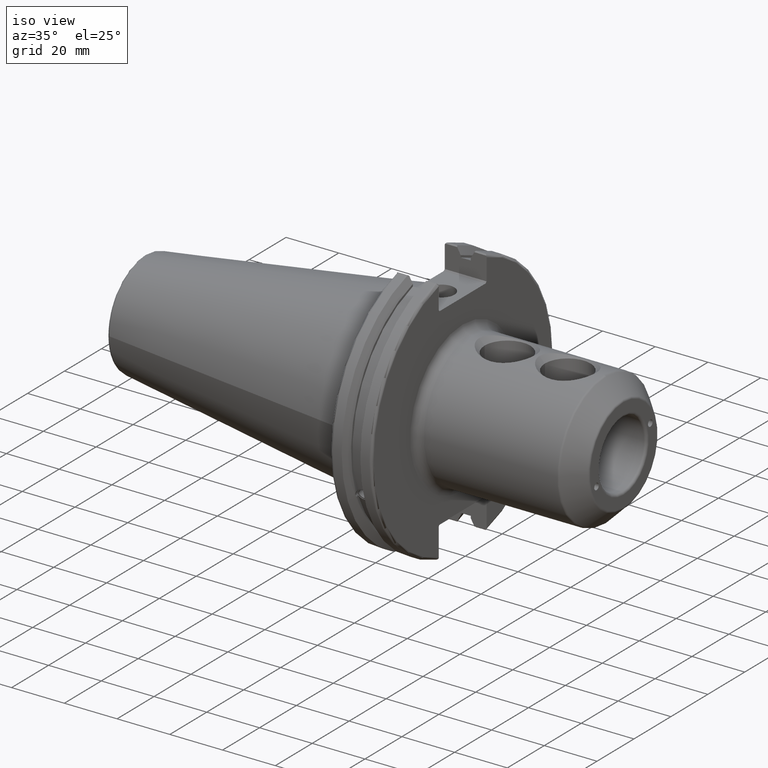
[diagram: clean part render]
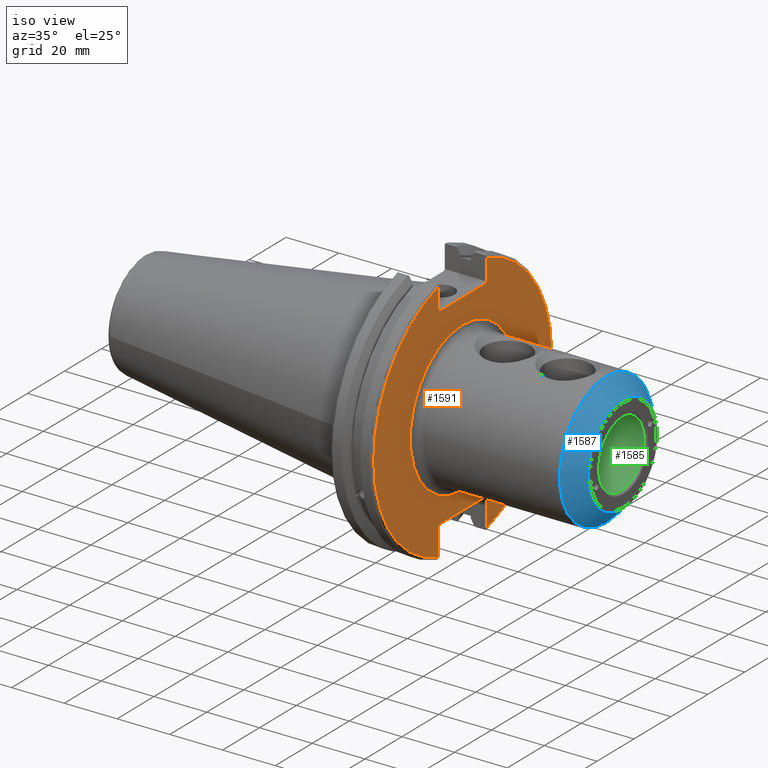
[diagram: same view with three faces highlighted in distinct colors, each labeled with its STEP entity id]
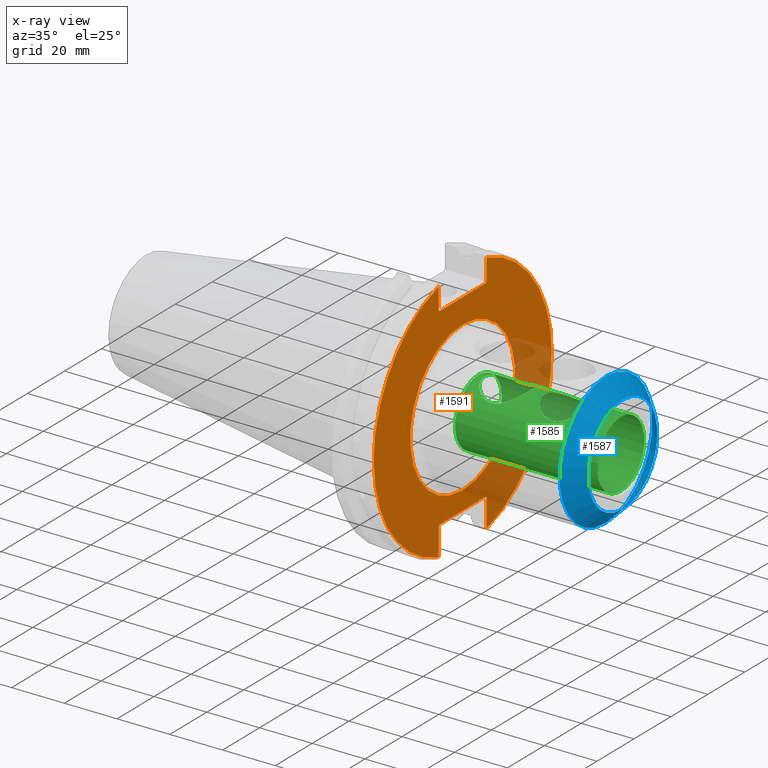
[diagram: x-ray of the same camera — body ghosted, the three highlighted faces saturated]
A machine part, iso view with three faces highlighted in distinct colors.
The next image is the same camera in x-ray (body ghosted, the three faces saturated) — at least one of them is partly hidden behind the body in this view.
Their STEP definitions:

[orange] entity #1591 — the highlighted planar face has unit normal (1, 0, 0).
#63=FACE_BOUND('',#318,.T.);
#87=PLANE('',#1728);
#143=CIRCLE('',#1727,28.4);
#144=CIRCLE('',#1729,48.2125);
#145=CIRCLE('',#1730,48.2125);
#217=FACE_OUTER_BOUND('',#317,.T.);
#317=EDGE_LOOP('',(#1144,#1145,#1146,#1147,#1148,#1149,#1150,#1151,#1152,
#1153,#1154,#1155));
#318=EDGE_LOOP('',(#1156));
#472=LINE('',#2625,#566);
#473=LINE('',#2627,#567);
#474=LINE('',#2629,#568);
#475=LINE('',#2631,#569);
#476=LINE('',#2633,#570);
#477=LINE('',#2637,#571);
#478=LINE('',#2639,#572);
#479=LINE('',#2641,#573);
#480=LINE('',#2643,#574);
#481=LINE('',#2644,#575);
#566=VECTOR('',#1955,10.);
#567=VECTOR('',#1956,10.);
#568=VECTOR('',#1957,10.);
#569=VECTOR('',#1958,10.);
#570=VECTOR('',#1959,10.);
#571=VECTOR('',#1962,10.);
#572=VECTOR('',#1963,10.);
#573=VECTOR('',#1964,10.);
#574=VECTOR('',#1965,10.);
#575=VECTOR('',#1966,10.);
#685=VERTEX_POINT('',#2617);
#686=VERTEX_POINT('',#2621);
#687=VERTEX_POINT('',#2622);
#688=VERTEX_POINT('',#2624);
#689=VERTEX_POINT('',#2626);
#690=VERTEX_POINT('',#2628);
#691=VERTEX_POINT('',#2630);
#692=VERTEX_POINT('',#2632);
#693=VERTEX_POINT('',#2634);
#694=VERTEX_POINT('',#2636);
#695=VERTEX_POINT('',#2638);
#696=VERTEX_POINT('',#2640);
#697=VERTEX_POINT('',#2642);
#863=EDGE_CURVE('',#685,#685,#143,.T.);
#864=EDGE_CURVE('',#686,#687,#144,.T.);
#865=EDGE_CURVE('',#686,#688,#472,.T.);
#866=EDGE_CURVE('',#689,#688,#473,.T.);
#867=EDGE_CURVE('',#689,#690,#474,.T.);
#868=EDGE_CURVE('',#691,#690,#475,.T.);
#869=EDGE_CURVE('',#691,#692,#476,.T.);
#870=EDGE_CURVE('',#693,#692,#145,.T.);
#871=EDGE_CURVE('',#693,#694,#477,.T.);
#872=EDGE_CURVE('',#695,#694,#478,.T.);
#873=EDGE_CURVE('',#695,#696,#479,.T.);
#874=EDGE_CURVE('',#697,#696,#480,.T.);
#875=EDGE_CURVE('',#697,#687,#481,.T.);
#1144=ORIENTED_EDGE('',*,*,#864,.F.);
#1145=ORIENTED_EDGE('',*,*,#865,.T.);
#1146=ORIENTED_EDGE('',*,*,#866,.F.);
#1147=ORIENTED_EDGE('',*,*,#867,.T.);
#1148=ORIENTED_EDGE('',*,*,#868,.F.);
#1149=ORIENTED_EDGE('',*,*,#869,.T.);
#1150=ORIENTED_EDGE('',*,*,#870,.F.);
#1151=ORIENTED_EDGE('',*,*,#871,.T.);
#1152=ORIENTED_EDGE('',*,*,#872,.F.);
#1153=ORIENTED_EDGE('',*,*,#873,.T.);
#1154=ORIENTED_EDGE('',*,*,#874,.F.);
#1155=ORIENTED_EDGE('',*,*,#875,.T.);
#1156=ORIENTED_EDGE('',*,*,#863,.F.);
#1591=ADVANCED_FACE('',(#217,#63),#87,.T.);
#1727=AXIS2_PLACEMENT_3D('',#2619,#1949,#1950);
#1728=AXIS2_PLACEMENT_3D('',#2620,#1951,#1952);
#1729=AXIS2_PLACEMENT_3D('',#2623,#1953,#1954);
#1730=AXIS2_PLACEMENT_3D('',#2635,#1960,#1961);
#1949=DIRECTION('center_axis',(1.,0.,0.));
#1950=DIRECTION('ref_axis',(0.,1.22464679914735E-16,-1.));
#1951=DIRECTION('center_axis',(1.,0.,0.));
#1952=DIRECTION('ref_axis',(0.,0.,-1.));
#1953=DIRECTION('center_axis',(-1.,0.,0.));
#1954=DIRECTION('ref_axis',(0.,1.,-6.12323399573677E-17));
#1955=DIRECTION('',(0.,0.,-1.));
#1956=DIRECTION('',(0.,0.707106781186549,0.707106781186546));
#1957=DIRECTION('',(0.,-1.,0.));
#1958=DIRECTION('',(0.,0.707106781186549,-0.707106781186546));
#1959=DIRECTION('',(0.,0.,1.));
#1960=DIRECTION('center_axis',(-1.,0.,0.));
#1961=DIRECTION('ref_axis',(0.,-1.,1.60812264967664E-16));
#1962=DIRECTION('',(0.,0.,1.));
#1963=DIRECTION('',(0.,-0.707106781186549,-0.707106781186546));
#1964=DIRECTION('',(0.,1.,0.));
#1965=DIRECTION('',(0.,-0.707106781186549,0.707106781186546));
#1966=DIRECTION('',(0.,0.,-1.));
#2617=CARTESIAN_POINT('',(19.05,-3.47799690957848E-15,-28.4));
#2619=CARTESIAN_POINT('Origin',(19.05,0.,0.));
#2620=CARTESIAN_POINT('Origin',(19.05,0.,0.));
#2621=CARTESIAN_POINT('',(19.05,12.95,46.4407434937254));
#2622=CARTESIAN_POINT('',(19.05,12.95,-46.4407434937254));
#2623=CARTESIAN_POINT('Origin',(19.05,0.,0.));
#2624=CARTESIAN_POINT('',(19.05,12.95,38.219));
#2625=CARTESIAN_POINT('',(19.05,12.95,18.8595));
#2626=CARTESIAN_POINT('',(19.05,12.45,37.719));
#2627=CARTESIAN_POINT('',(19.05,0.0327499999999836,25.30175));
#2628=CARTESIAN_POINT('',(19.05,-12.45,37.719));
#2629=CARTESIAN_POINT('',(19.05,0.,37.719));
#2630=CARTESIAN_POINT('',(19.05,-12.95,38.219));
#2631=CARTESIAN_POINT('',(19.05,-0.0327499999999817,25.30175));
#2632=CARTESIAN_POINT('',(19.05,-12.95,46.4407434937254));
#2633=CARTESIAN_POINT('',(19.05,-12.95,18.8595));
#2634=CARTESIAN_POINT('',(19.05,-12.95,-46.4407434937254));
#2635=CARTESIAN_POINT('Origin',(19.05,0.,0.));
#2636=CARTESIAN_POINT('',(19.05,-12.95,-35.806));
#2637=CARTESIAN_POINT('',(19.05,-12.95,-17.653));
#2638=CARTESIAN_POINT('',(19.05,-12.45,-35.306));
#2639=CARTESIAN_POINT('',(19.05,-0.635999999999989,-23.492));
#2640=CARTESIAN_POINT('',(19.05,12.45,-35.306));
#2641=CARTESIAN_POINT('',(19.05,-3.33066907387547E-15,-35.306));
#2642=CARTESIAN_POINT('',(19.05,12.95,-35.806));
#2643=CARTESIAN_POINT('',(19.05,0.635999999999982,-23.492));
#2644=CARTESIAN_POINT('',(19.05,12.95,-17.653));

[blue] entity #1587 — the highlighted conical surface has half-angle 45 deg.
#43=CONICAL_SURFACE('',#1716,21.95,0.785398163397449);
#134=CIRCLE('',#1714,18.7928932188135);
#135=CIRCLE('',#1715,18.7928932188135);
#136=CIRCLE('',#1717,25.1071067811865);
#137=CIRCLE('',#1718,25.1071067811865);
#213=FACE_OUTER_BOUND('',#311,.T.);
#311=EDGE_LOOP('',(#1119,#1120,#1121,#1122,#1123,#1124));
#470=LINE('',#2602,#564);
#564=VECTOR('',#1927,21.95);
#678=VERTEX_POINT('',#2595);
#679=VERTEX_POINT('',#2597);
#680=VERTEX_POINT('',#2601);
#681=VERTEX_POINT('',#2603);
#852=EDGE_CURVE('',#678,#679,#134,.T.);
#853=EDGE_CURVE('',#679,#678,#135,.T.);
#854=EDGE_CURVE('',#679,#680,#470,.T.);
#855=EDGE_CURVE('',#681,#680,#136,.T.);
#856=EDGE_CURVE('',#680,#681,#137,.T.);
#1119=ORIENTED_EDGE('',*,*,#852,.F.);
#1120=ORIENTED_EDGE('',*,*,#853,.F.);
#1121=ORIENTED_EDGE('',*,*,#854,.T.);
#1122=ORIENTED_EDGE('',*,*,#855,.F.);
#1123=ORIENTED_EDGE('',*,*,#856,.F.);
#1124=ORIENTED_EDGE('',*,*,#854,.F.);
#1587=ADVANCED_FACE('',(#213),#43,.T.);
#1714=AXIS2_PLACEMENT_3D('',#2598,#1921,#1922);
#1715=AXIS2_PLACEMENT_3D('',#2599,#1923,#1924);
#1716=AXIS2_PLACEMENT_3D('',#2600,#1925,#1926);
#1717=AXIS2_PLACEMENT_3D('',#2604,#1928,#1929);
#1718=AXIS2_PLACEMENT_3D('',#2605,#1930,#1931);
#1921=DIRECTION('center_axis',(1.,0.,0.));
#1922=DIRECTION('ref_axis',(0.,6.12323399573677E-17,-1.));
#1923=DIRECTION('center_axis',(1.,0.,0.));
#1924=DIRECTION('ref_axis',(0.,6.12323399573677E-17,-1.));
#1925=DIRECTION('center_axis',(-1.,0.,0.));
#1926=DIRECTION('ref_axis',(0.,0.,1.));
#1927=DIRECTION('',(-0.707106781186547,8.65956056235494E-17,-0.707106781186548));
#1928=DIRECTION('center_axis',(-1.,0.,0.));
#1929=DIRECTION('ref_axis',(0.,6.12323399573677E-17,-1.));
#1930=DIRECTION('center_axis',(-1.,0.,0.));
#1931=DIRECTION('ref_axis',(0.,6.12323399573677E-17,-1.));
#2595=CARTESIAN_POINT('',(79.7071067811866,-2.30146565271379E-15,18.7928932188135));
#2597=CARTESIAN_POINT('',(79.7071067811866,2.30146565271379E-15,-18.7928932188135));
#2598=CARTESIAN_POINT('Origin',(79.7071067811866,1.15073282635689E-15,0.));
#2599=CARTESIAN_POINT('Origin',(79.7071067811866,1.15073282635689E-15,0.));
#2600=CARTESIAN_POINT('Origin',(76.55,0.,0.));
#2601=CARTESIAN_POINT('',(73.3928932188135,3.07473379554309E-15,-25.1071067811866));
#2602=CARTESIAN_POINT('',(76.55,2.68809972412844E-15,-21.95));
#2603=CARTESIAN_POINT('',(73.3928932188135,3.07473379554309E-15,25.1071067811865));
#2604=CARTESIAN_POINT('Origin',(73.3928932188135,1.53736689777155E-15,0.));
#2605=CARTESIAN_POINT('Origin',(73.3928932188135,1.53736689777155E-15,0.));

[green] entity #1585 — the highlighted cylindrical surface (bore or boss wall) has radius 12.7 mm, axis along (1, 0, 0).
#59=FACE_BOUND('',#308,.T.);
#60=FACE_BOUND('',#309,.T.);
#127=CIRCLE('',#1704,12.7);
#128=CIRCLE('',#1705,12.7);
#132=CIRCLE('',#1711,12.7);
#211=FACE_OUTER_BOUND('',#307,.T.);
#307=EDGE_LOOP('',(#1105,#1106,#1107,#1108,#1109));
#308=EDGE_LOOP('',(#1110,#1111));
#309=EDGE_LOOP('',(#1112,#1113));
#417=B_SPLINE_CURVE_WITH_KNOTS('',3,(#2415,#2416,#2417,#2418,#2419,#2420,
#2421,#2422,#2423,#2424,#2425,#2426,#2427,#2428,#2429,#2430,#2431,#2432,
#2433,#2434,#2435,#2436,#2437,#2438,#2439,#2440),.UNSPECIFIED.,.F.,.F.,
(4,2,2,2,2,2,2,2,2,2,2,2,4),(0.,0.342831187342052,0.685662374684104,1.02424067190905,
1.36281896913399,1.70139726635893,2.03997556358388,2.38280675092593,2.72563793826798,
3.06846912561003,3.41130031295208,3.74987861017703,4.08845690740197),
 .UNSPECIFIED.);
#418=B_SPLINE_CURVE_WITH_KNOTS('',3,(#2441,#2442,#2443,#2444,#2445,#2446,
#2447,#2448,#2449,#2450),.UNSPECIFIED.,.F.,.F.,(4,2,2,2,4),(4.08845690740197,
4.42703520462691,4.76561350185186,5.10844468919391,5.45127587653596),
 .UNSPECIFIED.);
#421=B_SPLINE_CURVE_WITH_KNOTS('',3,(#2500,#2501,#2502,#2503,#2504,#2505,
#2506,#2507,#2508,#2509,#2510,#2511,#2512,#2513,#2514,#2515,#2516,#2517,
#2518,#2519,#2520,#2521,#2522,#2523,#2524,#2525),.UNSPECIFIED.,.F.,.F.,
(4,2,2,2,2,2,2,2,2,2,2,2,4),(0.,0.342831187342052,0.685662374684105,1.02424067190905,
1.36281896913399,1.70139726635893,2.03997556358388,2.38280675092593,2.72563793826798,
3.06846912561003,3.41130031295208,3.74987861017703,4.08845690740197),
 .UNSPECIFIED.);
#422=B_SPLINE_CURVE_WITH_KNOTS('',3,(#2526,#2527,#2528,#2529,#2530,#2531,
#2532,#2533,#2534,#2535),.UNSPECIFIED.,.F.,.F.,(4,2,2,2,4),(4.08845690740197,
4.42703520462691,4.76561350185186,5.10844468919391,5.45127587653596),
 .UNSPECIFIED.);
#469=LINE('',#2592,#563);
#563=VECTOR('',#1914,12.7);
#662=VERTEX_POINT('',#2412);
#663=VERTEX_POINT('',#2414);
#668=VERTEX_POINT('',#2497);
#669=VERTEX_POINT('',#2499);
#673=VERTEX_POINT('',#2580);
#674=VERTEX_POINT('',#2581);
#677=VERTEX_POINT('',#2591);
#830=EDGE_CURVE('',#663,#662,#417,.T.);
#831=EDGE_CURVE('',#662,#663,#418,.T.);
#838=EDGE_CURVE('',#669,#668,#421,.T.);
#839=EDGE_CURVE('',#668,#669,#422,.T.);
#844=EDGE_CURVE('',#673,#674,#127,.T.);
#845=EDGE_CURVE('',#674,#673,#128,.T.);
#849=EDGE_CURVE('',#674,#677,#469,.T.);
#850=EDGE_CURVE('',#677,#677,#132,.T.);
#1105=ORIENTED_EDGE('',*,*,#844,.F.);
#1106=ORIENTED_EDGE('',*,*,#845,.F.);
#1107=ORIENTED_EDGE('',*,*,#849,.T.);
#1108=ORIENTED_EDGE('',*,*,#850,.F.);
#1109=ORIENTED_EDGE('',*,*,#849,.F.);
#1110=ORIENTED_EDGE('',*,*,#830,.T.);
#1111=ORIENTED_EDGE('',*,*,#831,.T.);
#1112=ORIENTED_EDGE('',*,*,#838,.T.);
#1113=ORIENTED_EDGE('',*,*,#839,.T.);
#1550=CYLINDRICAL_SURFACE('',#1710,12.7);
#1585=ADVANCED_FACE('',(#211,#59,#60),#1550,.F.);
#1704=AXIS2_PLACEMENT_3D('',#2582,#1900,#1901);
#1705=AXIS2_PLACEMENT_3D('',#2583,#1902,#1903);
#1710=AXIS2_PLACEMENT_3D('',#2590,#1912,#1913);
#1711=AXIS2_PLACEMENT_3D('',#2593,#1915,#1916);
#1900=DIRECTION('center_axis',(-1.,0.,0.));
#1901=DIRECTION('ref_axis',(0.,0.,-1.));
#1902=DIRECTION('center_axis',(-1.,0.,0.));
#1903=DIRECTION('ref_axis',(0.,0.,-1.));
#1912=DIRECTION('center_axis',(1.,0.,0.));
#1913=DIRECTION('ref_axis',(0.,0.,1.));
#1914=DIRECTION('',(-1.,0.,0.));
#1915=DIRECTION('center_axis',(1.,0.,0.));
#1916=DIRECTION('ref_axis',(0.,0.,-1.));
#2412=CARTESIAN_POINT('',(27.3386,-1.08546930161932E-15,12.7));
#2414=CARTESIAN_POINT('',(36.,-8.6614,9.28817258883577));
#2415=CARTESIAN_POINT('Ctrl Pts',(36.,-8.6614,9.28817258883577));
#2416=CARTESIAN_POINT('Ctrl Pts',(37.1427706244735,-8.6614,9.28817258883577));
#2417=CARTESIAN_POINT('Ctrl Pts',(38.3131925798569,-8.42510703939285,9.52028980979605));
#2418=CARTESIAN_POINT('Ctrl Pts',(40.4248186480471,-7.53354592798,10.2403122930747));
#2419=CARTESIAN_POINT('Ctrl Pts',(41.3715110112521,-6.87755833788624,10.7111190531903));
#2420=CARTESIAN_POINT('Ctrl Pts',(42.8682169272622,-5.38085242187607,11.5350374541816));
#2421=CARTESIAN_POINT('Ctrl Pts',(43.5302869359934,-4.43227008771076,11.9523850753063));
#2422=CARTESIAN_POINT('Ctrl Pts',(44.4277674149023,-2.30715875855382,12.5372065673924));
#2423=CARTESIAN_POINT('Ctrl Pts',(44.6614,-1.12859432408314,12.7));
#2424=CARTESIAN_POINT('Ctrl Pts',(44.6614,1.12859432408315,12.7));
#2425=CARTESIAN_POINT('Ctrl Pts',(44.4277674149023,2.30715875855383,12.5372065673924));
#2426=CARTESIAN_POINT('Ctrl Pts',(43.5302869359934,4.43227008771077,11.9523850753063));
#2427=CARTESIAN_POINT('Ctrl Pts',(42.8682169272622,5.38085242187608,11.5350374541816));
#2428=CARTESIAN_POINT('Ctrl Pts',(41.3715110112521,6.87755833788624,10.7111190531903));
#2429=CARTESIAN_POINT('Ctrl Pts',(40.4248186480471,7.53354592798,10.2403122930747));
#2430=CARTESIAN_POINT('Ctrl Pts',(38.3131925798569,8.42510703939285,9.52028980979605));
#2431=CARTESIAN_POINT('Ctrl Pts',(37.1427706244735,8.6614,9.28817258883577));
#2432=CARTESIAN_POINT('Ctrl Pts',(34.8572293755265,8.6614,9.28817258883577));
#2433=CARTESIAN_POINT('Ctrl Pts',(33.6868074201431,8.42510703939285,9.52028980979605));
#2434=CARTESIAN_POINT('Ctrl Pts',(31.5751813519529,7.53354592798,10.2403122930747));
#2435=CARTESIAN_POINT('Ctrl Pts',(30.6284889887479,6.87755833788624,10.7111190531903));
#2436=CARTESIAN_POINT('Ctrl Pts',(29.1317830727377,5.38085242187607,11.5350374541816));
#2437=CARTESIAN_POINT('Ctrl Pts',(28.4697130640066,4.43227008771077,11.9523850753063));
#2438=CARTESIAN_POINT('Ctrl Pts',(27.5722325850977,2.30715875855382,12.5372065673924));
#2439=CARTESIAN_POINT('Ctrl Pts',(27.3386,1.12859432408314,12.7));
#2440=CARTESIAN_POINT('Ctrl Pts',(27.3386,-5.55111512312578E-16,12.7));
#2441=CARTESIAN_POINT('Ctrl Pts',(27.3386,-1.38777878078145E-15,12.7));
#2442=CARTESIAN_POINT('Ctrl Pts',(27.3386,-1.12859432408315,12.7));
#2443=CARTESIAN_POINT('Ctrl Pts',(27.5722325850977,-2.30715875855383,12.5372065673924));
#2444=CARTESIAN_POINT('Ctrl Pts',(28.4697130640066,-4.43227008771077,11.9523850753063));
#2445=CARTESIAN_POINT('Ctrl Pts',(29.1317830727377,-5.38085242187607,11.5350374541816));
#2446=CARTESIAN_POINT('Ctrl Pts',(30.6284889887479,-6.87755833788624,10.7111190531903));
#2447=CARTESIAN_POINT('Ctrl Pts',(31.5751813519529,-7.53354592798,10.2403122930747));
#2448=CARTESIAN_POINT('Ctrl Pts',(33.6868074201431,-8.42510703939285,9.52028980979605));
#2449=CARTESIAN_POINT('Ctrl Pts',(34.8572293755265,-8.6614,9.28817258883577));
#2450=CARTESIAN_POINT('Ctrl Pts',(36.,-8.6614,9.28817258883577));
#2497=CARTESIAN_POINT('',(50.2386,-1.50180293585376E-15,12.7));
#2499=CARTESIAN_POINT('',(58.9,-8.6614,9.28817258883577));
#2500=CARTESIAN_POINT('Ctrl Pts',(58.9,-8.6614,9.28817258883577));
#2501=CARTESIAN_POINT('Ctrl Pts',(60.0427706244735,-8.6614,9.28817258883577));
#2502=CARTESIAN_POINT('Ctrl Pts',(61.2131925798569,-8.42510703939285,9.52028980979605));
#2503=CARTESIAN_POINT('Ctrl Pts',(63.3248186480471,-7.53354592798,10.2403122930747));
#2504=CARTESIAN_POINT('Ctrl Pts',(64.2715110112521,-6.87755833788623,10.7111190531903));
#2505=CARTESIAN_POINT('Ctrl Pts',(65.7682169272623,-5.38085242187607,11.5350374541816));
#2506=CARTESIAN_POINT('Ctrl Pts',(66.4302869359934,-4.43227008771076,11.9523850753063));
#2507=CARTESIAN_POINT('Ctrl Pts',(67.3277674149023,-2.30715875855382,12.5372065673924));
#2508=CARTESIAN_POINT('Ctrl Pts',(67.5614,-1.12859432408314,12.7));
#2509=CARTESIAN_POINT('Ctrl Pts',(67.5614,1.12859432408315,12.7));
#2510=CARTESIAN_POINT('Ctrl Pts',(67.3277674149023,2.30715875855382,12.5372065673924));
#2511=CARTESIAN_POINT('Ctrl Pts',(66.4302869359934,4.43227008771077,11.9523850753063));
#2512=CARTESIAN_POINT('Ctrl Pts',(65.7682169272623,5.38085242187607,11.5350374541816));
#2513=CARTESIAN_POINT('Ctrl Pts',(64.2715110112521,6.87755833788623,10.7111190531903));
#2514=CARTESIAN_POINT('Ctrl Pts',(63.3248186480471,7.53354592798,10.2403122930747));
#2515=CARTESIAN_POINT('Ctrl Pts',(61.2131925798569,8.42510703939285,9.52028980979605));
#2516=CARTESIAN_POINT('Ctrl Pts',(60.0427706244735,8.6614,9.28817258883577));
#2517=CARTESIAN_POINT('Ctrl Pts',(57.7572293755265,8.6614,9.28817258883577));
#2518=CARTESIAN_POINT('Ctrl Pts',(56.5868074201431,8.42510703939285,9.52028980979605));
#2519=CARTESIAN_POINT('Ctrl Pts',(54.4751813519529,7.53354592798,10.2403122930747));
#2520=CARTESIAN_POINT('Ctrl Pts',(53.5284889887479,6.87755833788623,10.7111190531903));
#2521=CARTESIAN_POINT('Ctrl Pts',(52.0317830727377,5.38085242187607,11.5350374541816));
#2522=CARTESIAN_POINT('Ctrl Pts',(51.3697130640066,4.43227008771076,11.9523850753063));
#2523=CARTESIAN_POINT('Ctrl Pts',(50.4722325850977,2.30715875855382,12.5372065673924));
#2524=CARTESIAN_POINT('Ctrl Pts',(50.2386,1.12859432408314,12.7));
#2525=CARTESIAN_POINT('Ctrl Pts',(50.2386,-2.77555756156289E-16,12.7));
#2526=CARTESIAN_POINT('Ctrl Pts',(50.2386,-1.94289029309402E-15,12.7));
#2527=CARTESIAN_POINT('Ctrl Pts',(50.2386,-1.12859432408315,12.7));
#2528=CARTESIAN_POINT('Ctrl Pts',(50.4722325850977,-2.30715875855383,12.5372065673924));
#2529=CARTESIAN_POINT('Ctrl Pts',(51.3697130640066,-4.43227008771077,11.9523850753063));
#2530=CARTESIAN_POINT('Ctrl Pts',(52.0317830727377,-5.38085242187607,11.5350374541816));
#2531=CARTESIAN_POINT('Ctrl Pts',(53.5284889887479,-6.87755833788624,10.7111190531903));
#2532=CARTESIAN_POINT('Ctrl Pts',(54.4751813519529,-7.53354592798001,10.2403122930747));
#2533=CARTESIAN_POINT('Ctrl Pts',(56.5868074201431,-8.42510703939285,9.52028980979605));
#2534=CARTESIAN_POINT('Ctrl Pts',(57.7572293755265,-8.6614,9.28817258883577));
#2535=CARTESIAN_POINT('Ctrl Pts',(58.9,-8.6614,9.28817258883577));
#2580=CARTESIAN_POINT('',(79.,1.55530143491714E-15,12.7));
#2581=CARTESIAN_POINT('',(79.,1.55530143491714E-15,-12.7));
#2582=CARTESIAN_POINT('Origin',(79.,0.,0.));
#2583=CARTESIAN_POINT('Origin',(79.,0.,0.));
#2590=CARTESIAN_POINT('Origin',(52.5,0.,0.));
#2591=CARTESIAN_POINT('',(25.,1.55530143491714E-15,-12.7));
#2592=CARTESIAN_POINT('',(52.5,1.55530143491714E-15,-12.7));
#2593=CARTESIAN_POINT('Origin',(25.,0.,0.));